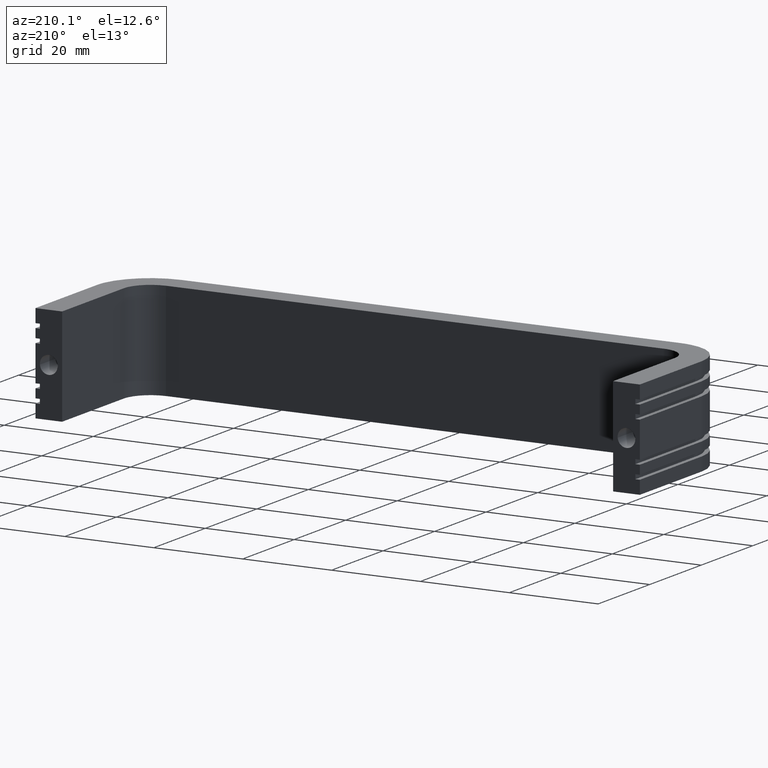
[diagram: clean part render]
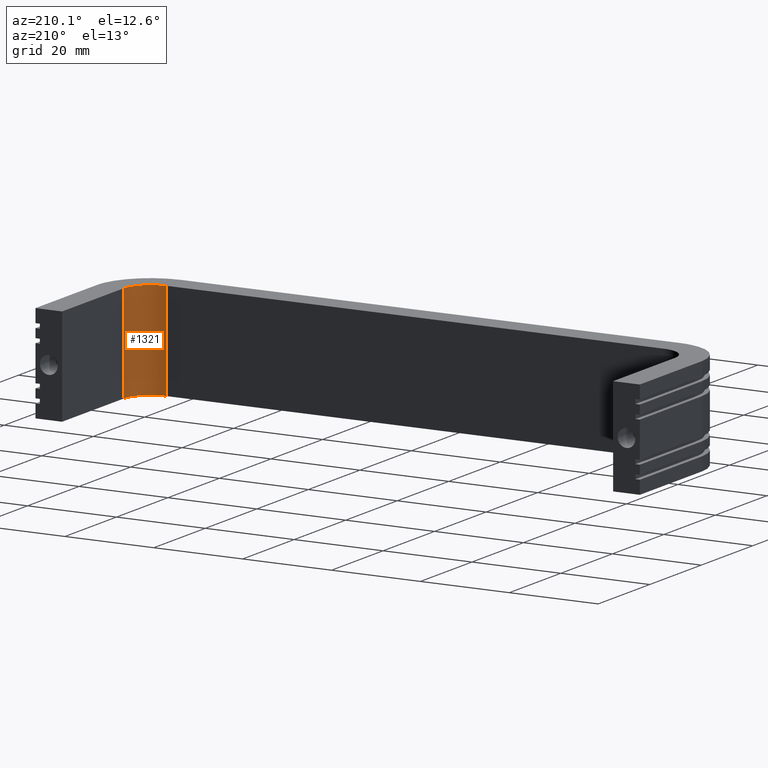
[diagram: same view with one face highlighted and labeled with its STEP entity id]
A machine part, auxiliary view. The second image highlights one B-rep face of the part: STEP entity #1321.
In plain terms, the highlighted face is a freeform B-spline surface patch.
Its self-contained STEP definition (entity closure, byte-faithful):
#761=CARTESIAN_POINT('',(126.999900000000000,-24.0,-11.0));
#762=VERTEX_POINT('',#761);
#770=CARTESIAN_POINT('',(126.999900000000000,-24.0,11.0));
#771=VERTEX_POINT('',#770);
#772=CARTESIAN_POINT('',(126.999900000000000,-24.0,11.0));
#773=CARTESIAN_POINT('',(126.999900000000000,-24.0,-11.0));
#774=QUASI_UNIFORM_CURVE('',1,(#772,#773),.UNSPECIFIED.,.F.,.U.);
#775=EDGE_CURVE('',#771,#762,#774,.T.);
#1269=CARTESIAN_POINT('',(126.994189329491110,-23.738283675807988,-11.550000000000001));
#1270=CARTESIAN_POINT('',(126.994189329491110,-23.738283675807988,11.563750000000001));
#1271=CARTESIAN_POINT('',(127.287506917836210,-30.456360950494489,-11.550000000000001));
#1272=CARTESIAN_POINT('',(127.287506917836210,-30.456360950494489,11.563750000000004));
#1273=CARTESIAN_POINT('',(120.579552010930930,-29.985257518944799,-11.550000000000001));
#1274=CARTESIAN_POINT('',(120.579552010930930,-29.985257518944799,11.563750000000001));
#1282=(BOUNDED_SURFACE()B_SPLINE_SURFACE(1,2,((#1269,#1271,#1273),(#1270,#1272,#1274)),.UNSPECIFIED.,.F.,.F.,.U.)B_SPLINE_SURFACE_WITH_KNOTS((2,2),(3,3),(0.0,23.113750000000010),(0.0,10.750454560937360),.UNSPECIFIED.)GEOMETRIC_REPRESENTATION_ITEM()RATIONAL_B_SPLINE_SURFACE(((1.0,0.664513919648999,0.996233519505392),(1.0,0.664513919648999,0.996233519505392)))REPRESENTATION_ITEM('')SURFACE());
#1283=CARTESIAN_POINT('',(120.999900000000000,-30.0,-11.0));
#1284=VERTEX_POINT('',#1283);
#1285=CARTESIAN_POINT('',(120.999900000000000,-30.0,-11.0));
#1286=CARTESIAN_POINT('',(126.999900000000000,-30.000000000000004,-11.0));
#1287=CARTESIAN_POINT('',(126.999900000000000,-24.0,-11.0));
#1295=(BOUNDED_CURVE()B_SPLINE_CURVE(2,(#1285,#1286,#1287),.UNSPECIFIED.,.F.,.U.)CURVE()GEOMETRIC_REPRESENTATION_ITEM()QUASI_UNIFORM_CURVE()RATIONAL_B_SPLINE_CURVE((1.0,0.707106781186548,1.0))REPRESENTATION_ITEM(''));
#1296=EDGE_CURVE('',#1284,#762,#1295,.T.);
#1297=ORIENTED_EDGE('',*,*,#1296,.F.);
#1298=CARTESIAN_POINT('',(120.999900000000000,-30.0,11.0));
#1299=VERTEX_POINT('',#1298);
#1300=CARTESIAN_POINT('',(120.999900000000000,-30.0,11.0));
#1301=CARTESIAN_POINT('',(120.999900000000000,-30.0,-11.0));
#1302=QUASI_UNIFORM_CURVE('',1,(#1300,#1301),.UNSPECIFIED.,.F.,.U.);
#1303=EDGE_CURVE('',#1299,#1284,#1302,.T.);
#1304=ORIENTED_EDGE('',*,*,#1303,.F.);
#1305=CARTESIAN_POINT('',(120.999900000000000,-30.0,11.0));
#1306=CARTESIAN_POINT('',(126.999900000000000,-30.000000000000004,11.0));
#1307=CARTESIAN_POINT('',(126.999900000000000,-24.0,11.0));
#1315=(BOUNDED_CURVE()B_SPLINE_CURVE(2,(#1305,#1306,#1307),.UNSPECIFIED.,.F.,.U.)CURVE()GEOMETRIC_REPRESENTATION_ITEM()QUASI_UNIFORM_CURVE()RATIONAL_B_SPLINE_CURVE((1.0,0.707106781186548,1.0))REPRESENTATION_ITEM(''));
#1316=EDGE_CURVE('',#1299,#771,#1315,.T.);
#1317=ORIENTED_EDGE('',*,*,#1316,.T.);
#1318=ORIENTED_EDGE('',*,*,#775,.T.);
#1319=EDGE_LOOP('',(#1297,#1304,#1317,#1318));
#1320=FACE_OUTER_BOUND('',#1319,.T.);
#1321=ADVANCED_FACE('',(#1320),#1282,.F.);